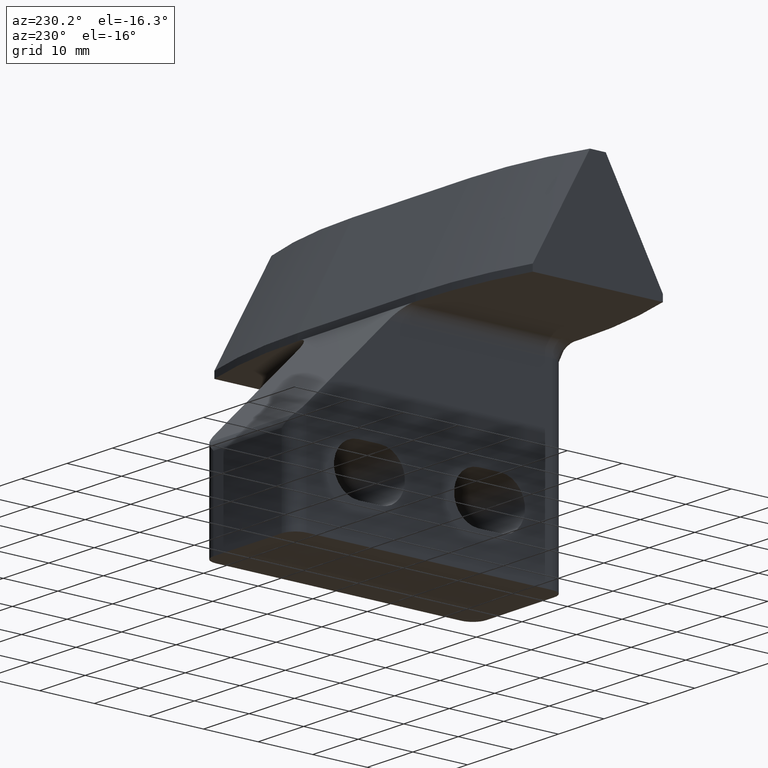
[diagram: clean part render]
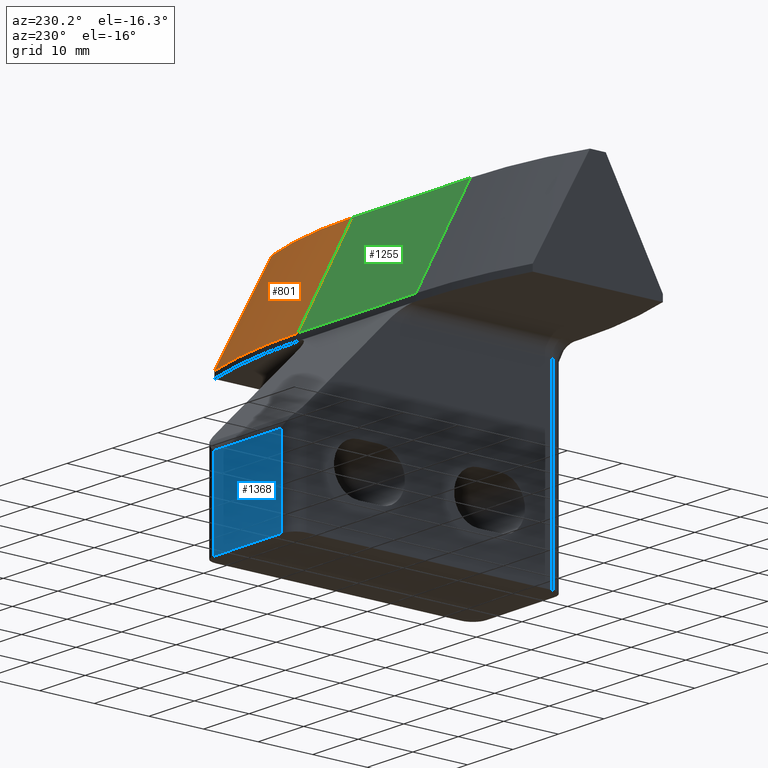
[diagram: same view with three faces highlighted in distinct colors, each labeled with its STEP entity id]
A machine part, auxiliary view with three faces highlighted in distinct colors.
Their STEP definitions:

[orange] entity #801 — the highlighted conical surface has half-angle 28 deg.
#25 = ORIENTED_EDGE ( 'NONE', *, *, #210, .F. ) ;
#28 = ORIENTED_EDGE ( 'NONE', *, *, #1285, .F. ) ;
#93 = VECTOR ( 'NONE', #1174, 1000.000000000000000 ) ;
#114 = CARTESIAN_POINT ( 'NONE',  ( 304.1349525314610100, -209.0457636697898900, 88.35001913877292200 ) ) ;
#145 = AXIS2_PLACEMENT_3D ( 'NONE', #598, #805, #1248 ) ;
#196 = VERTEX_POINT ( 'NONE', #829 ) ;
#210 = EDGE_CURVE ( 'NONE', #1025, #196, #688, .T. ) ;
#227 = DIRECTION ( 'NONE',  ( -4.502449018677930300E-014, 1.407015318336850200E-014, -1.000000000000000000 ) ) ;
#305 = FACE_OUTER_BOUND ( 'NONE', #524, .T. ) ;
#315 = ORIENTED_EDGE ( 'NONE', *, *, #1189, .F. ) ;
#318 = B_SPLINE_CURVE_WITH_KNOTS ( 'NONE', 3,
 ( #871, #1075, #114, #427 ),
 .UNSPECIFIED., .F., .F.,
 ( 4, 4 ),
 ( 3.477763656540196500E-016, 0.02152157283803241400 ),
 .UNSPECIFIED. ) ;
#409 = CIRCLE ( 'NONE', #145, 69.99999999996997200 ) ;
#412 = CARTESIAN_POINT ( 'NONE',  ( 282.1349525314619800, -199.0043693264340400, 75.80177415285969300 ) ) ;
#427 = CARTESIAN_POINT ( 'NONE',  ( 304.1349525314610100, -212.5513784231246700, 94.60903880631518300 ) ) ;
#444 = AXIS2_PLACEMENT_3D ( 'NONE', #972, #1063, #1179 ) ;
#451 = CARTESIAN_POINT ( 'NONE',  ( 304.1349525314610100, -212.5513784231246700, 94.60903880631518300 ) ) ;
#518 = LINE ( 'NONE', #412, #93 ) ;
#524 = EDGE_LOOP ( 'NONE', ( #28, #1356, #25, #315 ) ) ;
#539 = EDGE_CURVE ( 'NONE', #196, #1060, #318, .T. ) ;
#598 = CARTESIAN_POINT ( 'NONE',  ( 282.1349525314630000, -279.0043693264339600, 94.60903880630736800 ) ) ;
#655 = VERTEX_POINT ( 'NONE', #956 ) ;
#688 = CIRCLE ( 'NONE', #1051, 80.00000000000001400 ) ;
#711 = CONICAL_SURFACE ( 'NONE', #444, 80.00000000000007100, 0.4886921905600025700 ) ;
#801 = ADVANCED_FACE ( 'NONE', ( #305 ), #711, .T. ) ;
#805 = DIRECTION ( 'NONE',  ( -1.474514954580285200E-015, -1.474514954580285200E-015, 1.000000000000000000 ) ) ;
#829 = CARTESIAN_POINT ( 'NONE',  ( 304.1349525314610100, -202.0888312343158800, 75.80177415285918100 ) ) ;
#871 = CARTESIAN_POINT ( 'NONE',  ( 304.1349525314610100, -202.0888312343158800, 75.80177415285918100 ) ) ;
#956 = CARTESIAN_POINT ( 'NONE',  ( 282.1349525314619800, -209.0043693264299000, 94.60903880631541100 ) ) ;
#972 = CARTESIAN_POINT ( 'NONE',  ( 282.1349525314630000, -279.0043693264339600, 75.80177415285957900 ) ) ;
#992 = CARTESIAN_POINT ( 'NONE',  ( 282.1349525314620300, -279.0043693264339600, 75.80177415285857000 ) ) ;
#1025 = VERTEX_POINT ( 'NONE', #1143 ) ;
#1051 = AXIS2_PLACEMENT_3D ( 'NONE', #992, #227, #1211 ) ;
#1060 = VERTEX_POINT ( 'NONE', #451 ) ;
#1063 = DIRECTION ( 'NONE',  ( 1.474514954580285200E-015, 1.474514954580285200E-015, -1.000000000000000000 ) ) ;
#1075 = CARTESIAN_POINT ( 'NONE',  ( 304.1349525314610100, -205.5606629334019100, 82.07958745177533900 ) ) ;
#1143 = CARTESIAN_POINT ( 'NONE',  ( 282.1349525314627200, -199.0043693264345300, 75.80177415285969300 ) ) ;
#1174 = DIRECTION ( 'NONE',  ( -0.0000000000000000000, 0.4694715627858882000, -0.8829475928589283200 ) ) ;
#1179 = DIRECTION ( 'NONE',  ( -1.000000000000000000, 0.0000000000000000000, -1.561251128379125000E-015 ) ) ;
#1189 = EDGE_CURVE ( 'NONE', #655, #1025, #518, .T. ) ;
#1211 = DIRECTION ( 'NONE',  ( 1.000000000000000000, -3.469446951953613400E-015, -4.510281037539697800E-014 ) ) ;
#1248 = DIRECTION ( 'NONE',  ( -1.000000000000000000, 0.0000000000000000000, -1.387778780782041100E-015 ) ) ;
#1285 = EDGE_CURVE ( 'NONE', #1060, #655, #409, .T. ) ;
#1356 = ORIENTED_EDGE ( 'NONE', *, *, #539, .F. ) ;

[blue] entity #1368 — the highlighted planar face has unit normal (-0, 1, 0).
#22 = EDGE_CURVE ( 'NONE', #154, #143, #1130, .T. ) ;
#105 = EDGE_CURVE ( 'NONE', #940, #154, #1275, .T. ) ;
#143 = VERTEX_POINT ( 'NONE', #383 ) ;
#149 = CARTESIAN_POINT ( 'NONE',  ( 261.6349525314620300, -179.0043693264347600, 106.2557864523230400 ) ) ;
#154 = VERTEX_POINT ( 'NONE', #1367 ) ;
#157 = CARTESIAN_POINT ( 'NONE',  ( 328.2817001774619700, -179.0043693264338700, 53.57350490038999900 ) ) ;
#247 = CARTESIAN_POINT ( 'NONE',  ( 276.6349525314628300, -179.0043693264171100, 38.10903880631885700 ) ) ;
#367 = DIRECTION ( 'NONE',  ( -1.000000000000000000, -8.098422030508649600E-048, 3.675698846987206600E-032 ) ) ;
#381 = FACE_OUTER_BOUND ( 'NONE', #1073, .T. ) ;
#383 = CARTESIAN_POINT ( 'NONE',  ( 261.6349525313767100, -179.0043693264343300, 38.10903880631751400 ) ) ;
#389 = DIRECTION ( 'NONE',  ( -5.077118791201922500E-030, 1.000000000000000000, 4.347914244792590400E-015 ) ) ;
#417 = VECTOR ( 'NONE', #367, 1000.000000000000000 ) ;
#425 = EDGE_CURVE ( 'NONE', #987, #940, #859, .T. ) ;
#568 = VECTOR ( 'NONE', #1390, 1000.000000000000000 ) ;
#624 = VECTOR ( 'NONE', #1108, 1000.000000000000000 ) ;
#683 = CARTESIAN_POINT ( 'NONE',  ( 276.6349525314620900, -179.0043693264207100, 53.57350490039075900 ) ) ;
#695 = LINE ( 'NONE', #1006, #417 ) ;
#740 = CARTESIAN_POINT ( 'NONE',  ( 276.6349525314630600, -179.0043693264348700, 106.2557864523242900 ) ) ;
#859 = LINE ( 'NONE', #740, #568 ) ;
#867 = VECTOR ( 'NONE', #1139, 1000.000000000000000 ) ;
#901 = EDGE_CURVE ( 'NONE', #987, #143, #695, .T. ) ;
#940 = VERTEX_POINT ( 'NONE', #683 ) ;
#953 = ORIENTED_EDGE ( 'NONE', *, *, #22, .F. ) ;
#987 = VERTEX_POINT ( 'NONE', #247 ) ;
#1006 = CARTESIAN_POINT ( 'NONE',  ( 184.9150836120685400, -179.0043693264349800, 38.10903880631751400 ) ) ;
#1031 = CARTESIAN_POINT ( 'NONE',  ( 261.6349525313739800, -179.0043693264349800, 36.35903880632299900 ) ) ;
#1038 = PLANE ( 'NONE',  #1104 ) ;
#1073 = EDGE_LOOP ( 'NONE', ( #1217, #1228, #1144, #953 ) ) ;
#1104 = AXIS2_PLACEMENT_3D ( 'NONE', #1031, #389, #1148 ) ;
#1108 = DIRECTION ( 'NONE',  ( -1.252402550816746000E-012, 1.585834398761460300E-014, -1.000000000000000000 ) ) ;
#1130 = LINE ( 'NONE', #149, #624 ) ;
#1139 = DIRECTION ( 'NONE',  ( -1.000000000000000000, -4.805286945022859800E-015, 2.524354896707034700E-030 ) ) ;
#1144 = ORIENTED_EDGE ( 'NONE', *, *, #901, .T. ) ;
#1148 = DIRECTION ( 'NONE',  ( 0.0000000000000000000, -4.347914244792590400E-015, 1.000000000000000000 ) ) ;
#1217 = ORIENTED_EDGE ( 'NONE', *, *, #105, .F. ) ;
#1228 = ORIENTED_EDGE ( 'NONE', *, *, #425, .F. ) ;
#1275 = LINE ( 'NONE', #157, #867 ) ;
#1367 = CARTESIAN_POINT ( 'NONE',  ( 261.6349525313961500, -179.0043693264340700, 53.57350490039007700 ) ) ;
#1368 = ADVANCED_FACE ( 'NONE', ( #381 ), #1038, .T. ) ;
#1390 = DIRECTION ( 'NONE',  ( 3.252993638485050000E-015, -5.233253515912829400E-013, 1.000000000000000000 ) ) ;

[green] entity #1255 — the highlighted planar face has unit normal (-0, 0.8829, 0.4695).
#31 = ORIENTED_EDGE ( 'NONE', *, *, #1189, .T. ) ;
#58 = VERTEX_POINT ( 'NONE', #1131 ) ;
#93 = VECTOR ( 'NONE', #1174, 1000.000000000000000 ) ;
#175 = ORIENTED_EDGE ( 'NONE', *, *, #445, .F. ) ;
#216 = LINE ( 'NONE', #770, #1171 ) ;
#255 = DIRECTION ( 'NONE',  ( 1.000000000000000000, 1.774659098910725200E-015, 9.436029808746870400E-016 ) ) ;
#347 = DIRECTION ( 'NONE',  ( 0.0000000000000000000, -0.4694715627858882000, 0.8829475928589283200 ) ) ;
#380 = CARTESIAN_POINT ( 'NONE',  ( 282.1349525314630000, -199.0043693264340400, 75.80177415285969300 ) ) ;
#408 = AXIS2_PLACEMENT_3D ( 'NONE', #380, #489, #577 ) ;
#412 = CARTESIAN_POINT ( 'NONE',  ( 282.1349525314619800, -199.0043693264340400, 75.80177415285969300 ) ) ;
#445 = EDGE_CURVE ( 'NONE', #729, #1025, #1033, .T. ) ;
#486 = ORIENTED_EDGE ( 'NONE', *, *, #1145, .T. ) ;
#489 = DIRECTION ( 'NONE',  ( -2.009925745609081400E-015, 0.8829475928589283200, 0.4694715627858882000 ) ) ;
#518 = LINE ( 'NONE', #412, #93 ) ;
#546 = VECTOR ( 'NONE', #632, 1000.000000000000000 ) ;
#577 = DIRECTION ( 'NONE',  ( 0.0000000000000000000, -0.4694715627858882000, 0.8829475928589283200 ) ) ;
#632 = DIRECTION ( 'NONE',  ( 1.000000000000000000, 1.152244641486214400E-028, 5.516757795363319500E-042 ) ) ;
#655 = VERTEX_POINT ( 'NONE', #956 ) ;
#729 = VERTEX_POINT ( 'NONE', #975 ) ;
#770 = CARTESIAN_POINT ( 'NONE',  ( 256.1349525314620300, -199.0043693264341000, 75.80177415285967900 ) ) ;
#956 = CARTESIAN_POINT ( 'NONE',  ( 282.1349525314619800, -209.0043693264299000, 94.60903880631541100 ) ) ;
#975 = CARTESIAN_POINT ( 'NONE',  ( 256.1349525314620300, -199.0043693264340400, 75.80177415285965000 ) ) ;
#1022 = PLANE ( 'NONE',  #408 ) ;
#1025 = VERTEX_POINT ( 'NONE', #1143 ) ;
#1033 = LINE ( 'NONE', #1291, #546 ) ;
#1045 = VECTOR ( 'NONE', #255, 1000.000000000000000 ) ;
#1097 = ORIENTED_EDGE ( 'NONE', *, *, #1208, .T. ) ;
#1116 = LINE ( 'NONE', #1292, #1045 ) ;
#1127 = EDGE_LOOP ( 'NONE', ( #1097, #31, #175, #486 ) ) ;
#1131 = CARTESIAN_POINT ( 'NONE',  ( 256.1349525314620300, -209.0043693264299500, 94.60903880631536800 ) ) ;
#1143 = CARTESIAN_POINT ( 'NONE',  ( 282.1349525314627200, -199.0043693264345300, 75.80177415285969300 ) ) ;
#1145 = EDGE_CURVE ( 'NONE', #729, #58, #216, .T. ) ;
#1171 = VECTOR ( 'NONE', #347, 1000.000000000000000 ) ;
#1174 = DIRECTION ( 'NONE',  ( -0.0000000000000000000, 0.4694715627858882000, -0.8829475928589283200 ) ) ;
#1189 = EDGE_CURVE ( 'NONE', #655, #1025, #518, .T. ) ;
#1208 = EDGE_CURVE ( 'NONE', #58, #655, #1116, .T. ) ;
#1255 = ADVANCED_FACE ( 'NONE', ( #1312 ), #1022, .T. ) ;
#1291 = CARTESIAN_POINT ( 'NONE',  ( 281.6349525314969900, -199.0043693264350700, 75.80177415285969300 ) ) ;
#1292 = CARTESIAN_POINT ( 'NONE',  ( 282.1349525314630000, -209.0043693264341600, 94.60903880632335500 ) ) ;
#1312 = FACE_OUTER_BOUND ( 'NONE', #1127, .T. ) ;